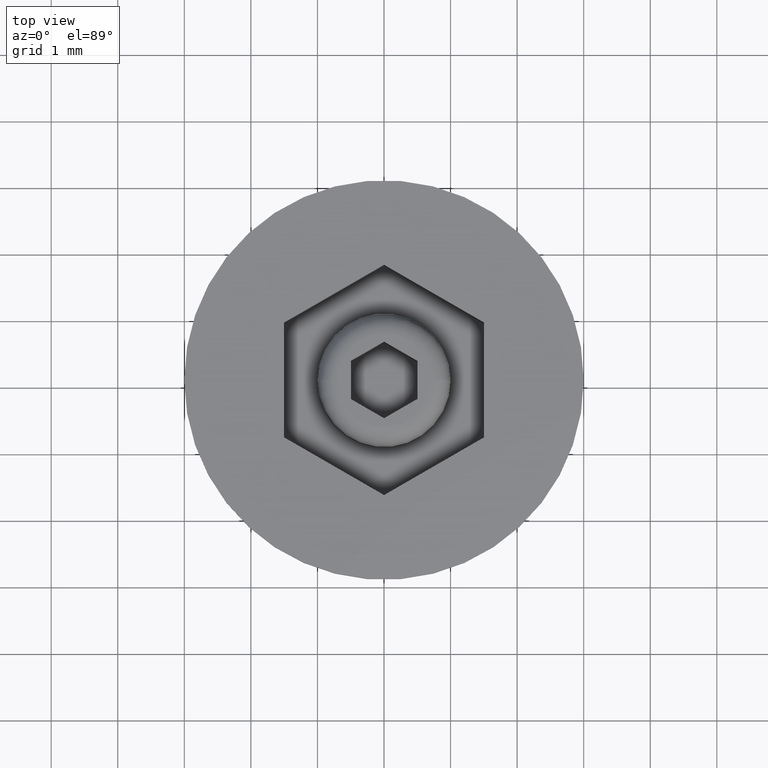
[diagram: clean part render]
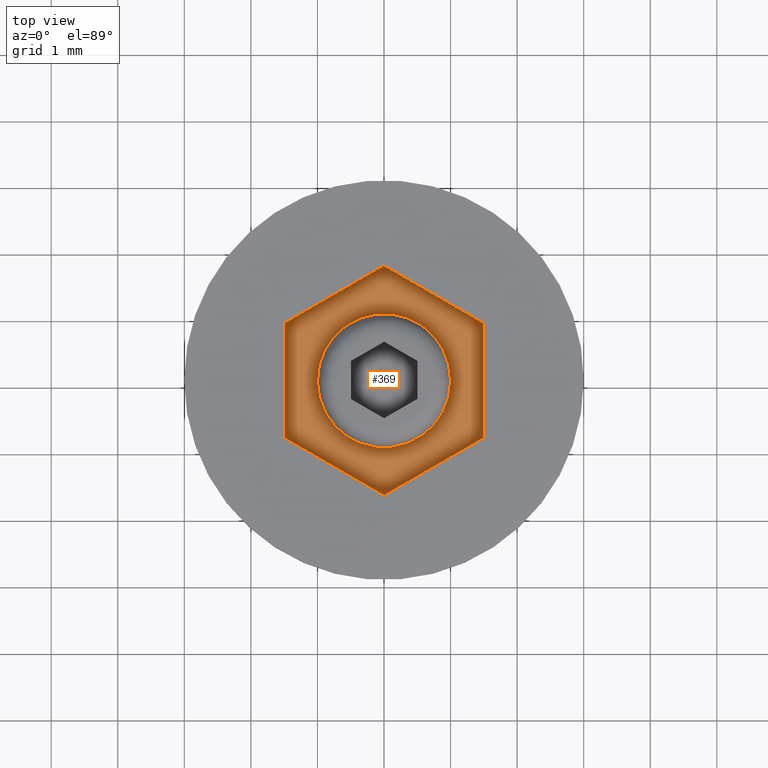
[diagram: same view with one face highlighted and labeled with its STEP entity id]
A machine part, top view. The second image highlights one B-rep face of the part: STEP entity #369.
In plain terms, the highlighted planar face has unit normal (0, 0, 1).
Its self-contained STEP definition (entity closure, byte-faithful):
#34 = CARTESIAN_POINT ( 'NONE',  ( 1.500000000000000444, 0.8660254037844385966, -1.000000000000000000 ) ) ;
#49 = VERTEX_POINT ( 'NONE', #34 ) ;
#52 = LINE ( 'NONE', #1168, #592 ) ;
#123 = CARTESIAN_POINT ( 'NONE',  ( 1.000000000000000666, 1.224646799147353947E-16, -1.000000000000000000 ) ) ;
#144 = LINE ( 'NONE', #314, #384 ) ;
#154 = CARTESIAN_POINT ( 'NONE',  ( -1.500000000000000444, 0.8660254037844389297, -1.000000000000000000 ) ) ;
#227 = CARTESIAN_POINT ( 'NONE',  ( 0.000000000000000000, 1.732050807568877415, -1.000000000000000000 ) ) ;
#242 = AXIS2_PLACEMENT_3D ( 'NONE', #730, #429, #289 ) ;
#285 = CARTESIAN_POINT ( 'NONE',  ( -1.500000000000000444, -0.8660254037844387076, -1.000000000000000000 ) ) ;
#288 = DIRECTION ( 'NONE',  ( 0.000000000000000000, 0.000000000000000000, 1.000000000000000000 ) ) ;
#289 = DIRECTION ( 'NONE',  ( 1.000000000000000000, 0.000000000000000000, 0.000000000000000000 ) ) ;
#290 = ORIENTED_EDGE ( 'NONE', *, *, #538, .T. ) ;
#302 = VECTOR ( 'NONE', #1379, 1000.000000000000227 ) ;
#314 = CARTESIAN_POINT ( 'NONE',  ( -3.346587165010555089E-16, -1.732050807568877859, -1.000000000000000000 ) ) ;
#319 = EDGE_CURVE ( 'NONE', #713, #49, #547, .T. ) ;
#347 = VERTEX_POINT ( 'NONE', #123 ) ;
#369 = ADVANCED_FACE ( 'NONE', ( #1250, #810 ), #422, .T. ) ;
#370 = ORIENTED_EDGE ( 'NONE', *, *, #1613, .T. ) ;
#384 = VECTOR ( 'NONE', #548, 1000.000000000000114 ) ;
#400 = CARTESIAN_POINT ( 'NONE',  ( -1.500000000000000444, 0.8660254037844389297, -1.000000000000000000 ) ) ;
#416 = VERTEX_POINT ( 'NONE', #400 ) ;
#422 = PLANE ( 'NONE',  #1309 ) ;
#426 = LINE ( 'NONE', #285, #1763 ) ;
#429 = DIRECTION ( 'NONE',  ( 0.000000000000000000, 0.000000000000000000, 1.000000000000000000 ) ) ;
#460 = DIRECTION ( 'NONE',  ( 0.000000000000000000, -1.000000000000000000, 0.000000000000000000 ) ) ;
#534 = VERTEX_POINT ( 'NONE', #1453 ) ;
#538 = EDGE_CURVE ( 'NONE', #416, #633, #1279, .T. ) ;
#547 = LINE ( 'NONE', #1113, #598 ) ;
#548 = DIRECTION ( 'NONE',  ( 0.8660254037844388186, 0.4999999999999996669, 0.000000000000000000 ) ) ;
#592 = VECTOR ( 'NONE', #1025, 1000.000000000000114 ) ;
#598 = VECTOR ( 'NONE', #1094, 1000.000000000000000 ) ;
#633 = VERTEX_POINT ( 'NONE', #1461 ) ;
#677 = ORIENTED_EDGE ( 'NONE', *, *, #1488, .T. ) ;
#688 = AXIS2_PLACEMENT_3D ( 'NONE', #982, #288, #1118 ) ;
#713 = VERTEX_POINT ( 'NONE', #1672 ) ;
#719 = EDGE_LOOP ( 'NONE', ( #1547, #1353, #290, #677, #370, #1809 ) ) ;
#730 = CARTESIAN_POINT ( 'NONE',  ( 0.000000000000000000, 0.000000000000000000, -1.000000000000000000 ) ) ;
#787 = EDGE_LOOP ( 'NONE', ( #1266, #801 ) ) ;
#801 = ORIENTED_EDGE ( 'NONE', *, *, #995, .F. ) ;
#810 = FACE_OUTER_BOUND ( 'NONE', #719, .T. ) ;
#971 = VERTEX_POINT ( 'NONE', #1382 ) ;
#982 = CARTESIAN_POINT ( 'NONE',  ( 0.000000000000000000, 0.000000000000000000, -1.000000000000000000 ) ) ;
#995 = EDGE_CURVE ( 'NONE', #347, #971, #1047, .T. ) ;
#1025 = DIRECTION ( 'NONE',  ( -0.8660254037844387076, -0.4999999999999997780, 0.000000000000000000 ) ) ;
#1047 = CIRCLE ( 'NONE', #242, 1.000000000000000666 ) ;
#1094 = DIRECTION ( 'NONE',  ( 0.000000000000000000, 1.000000000000000000, 0.000000000000000000 ) ) ;
#1106 = CARTESIAN_POINT ( 'NONE',  ( 0.000000000000000000, 0.000000000000000000, -1.000000000000000000 ) ) ;
#1113 = CARTESIAN_POINT ( 'NONE',  ( 1.500000000000000444, -0.8660254037844393737, -1.000000000000000000 ) ) ;
#1118 = DIRECTION ( 'NONE',  ( 1.000000000000000000, 0.000000000000000000, 0.000000000000000000 ) ) ;
#1156 = VECTOR ( 'NONE', #460, 1000.000000000000000 ) ;
#1168 = CARTESIAN_POINT ( 'NONE',  ( 0.000000000000000000, 1.732050807568877415, -1.000000000000000000 ) ) ;
#1213 = EDGE_CURVE ( 'NONE', #971, #347, #1507, .T. ) ;
#1240 = DIRECTION ( 'NONE',  ( 0.000000000000000000, 0.000000000000000000, 1.000000000000000000 ) ) ;
#1250 = FACE_BOUND ( 'NONE', #787, .T. ) ;
#1266 = ORIENTED_EDGE ( 'NONE', *, *, #1213, .F. ) ;
#1279 = LINE ( 'NONE', #154, #1156 ) ;
#1298 = EDGE_CURVE ( 'NONE', #49, #1327, #1351, .T. ) ;
#1309 = AXIS2_PLACEMENT_3D ( 'NONE', #1106, #1240, #1698 ) ;
#1327 = VERTEX_POINT ( 'NONE', #227 ) ;
#1351 = LINE ( 'NONE', #1789, #302 ) ;
#1353 = ORIENTED_EDGE ( 'NONE', *, *, #1643, .T. ) ;
#1379 = DIRECTION ( 'NONE',  ( -0.8660254037844385966, 0.4999999999999998890, 0.000000000000000000 ) ) ;
#1382 = CARTESIAN_POINT ( 'NONE',  ( -1.000000000000000666, 0.000000000000000000, -1.000000000000000000 ) ) ;
#1453 = CARTESIAN_POINT ( 'NONE',  ( -3.346587165010555089E-16, -1.732050807568877859, -1.000000000000000000 ) ) ;
#1461 = CARTESIAN_POINT ( 'NONE',  ( -1.500000000000000444, -0.8660254037844387076, -1.000000000000000000 ) ) ;
#1488 = EDGE_CURVE ( 'NONE', #633, #534, #426, .T. ) ;
#1507 = CIRCLE ( 'NONE', #688, 1.000000000000000666 ) ;
#1547 = ORIENTED_EDGE ( 'NONE', *, *, #1298, .T. ) ;
#1551 = DIRECTION ( 'NONE',  ( 0.8660254037844384856, -0.5000000000000002220, 0.000000000000000000 ) ) ;
#1613 = EDGE_CURVE ( 'NONE', #534, #713, #144, .T. ) ;
#1643 = EDGE_CURVE ( 'NONE', #1327, #416, #52, .T. ) ;
#1672 = CARTESIAN_POINT ( 'NONE',  ( 1.500000000000000444, -0.8660254037844393737, -1.000000000000000000 ) ) ;
#1698 = DIRECTION ( 'NONE',  ( 1.000000000000000000, 0.000000000000000000, -0.000000000000000000 ) ) ;
#1763 = VECTOR ( 'NONE', #1551, 1000.000000000000114 ) ;
#1789 = CARTESIAN_POINT ( 'NONE',  ( 1.500000000000000444, 0.8660254037844385966, -1.000000000000000000 ) ) ;
#1809 = ORIENTED_EDGE ( 'NONE', *, *, #319, .T. ) ;